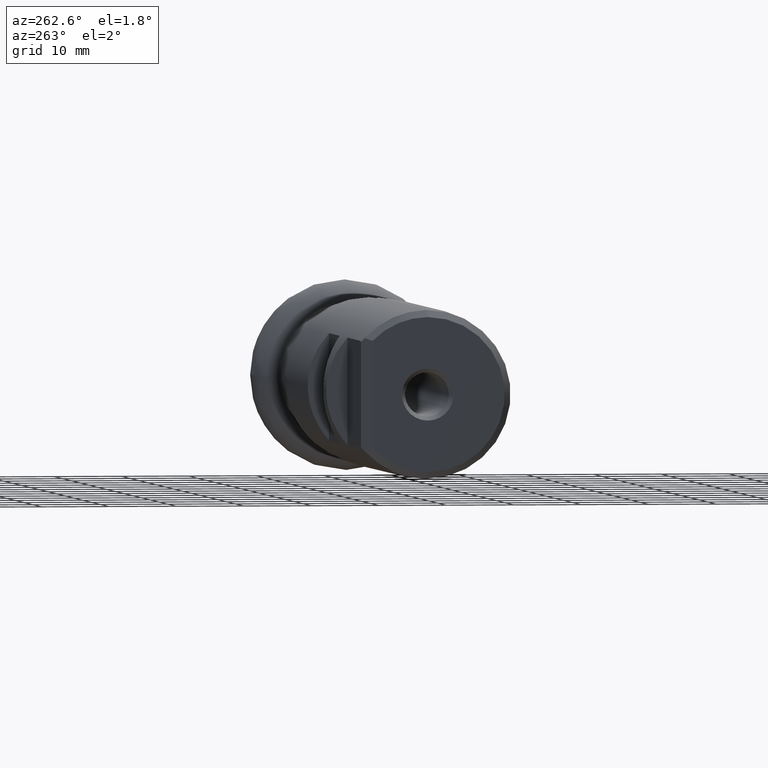
[diagram: clean part render]
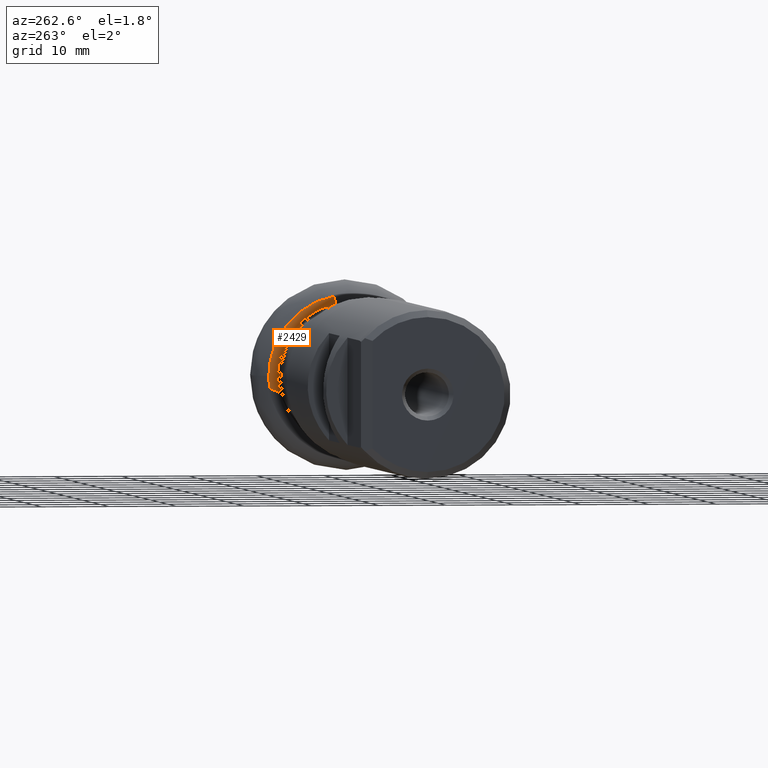
[diagram: same view with one face highlighted and labeled with its STEP entity id]
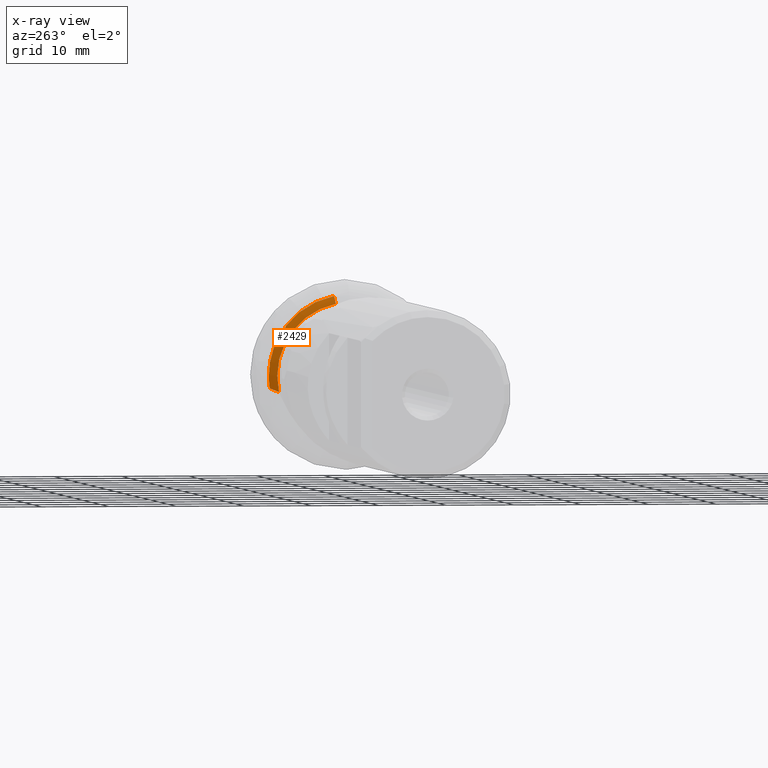
[diagram: x-ray of the same camera — body ghosted, the highlighted face saturated]
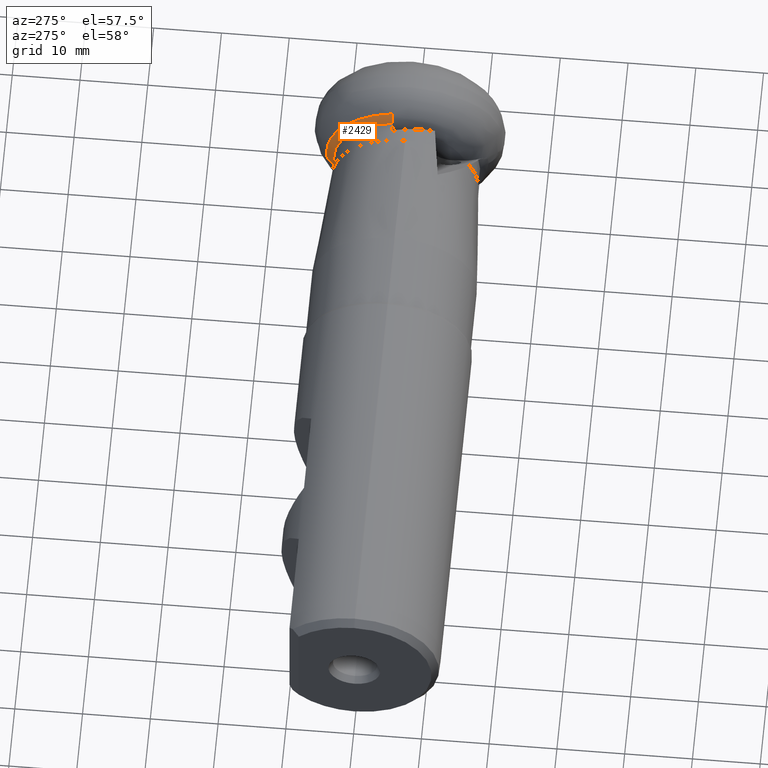
[diagram: same view with one face highlighted and labeled with its STEP entity id]
A machine part, auxiliary view. The second image highlights one B-rep face of the part: STEP entity #2429.
The next image is the same camera in x-ray: the body ghosted, the highlighted face saturated — about 0% of this face is hidden behind the body in this view.
A second angle (auxiliary view) of the same face is appended — the face is thin or edge-on in the first view.
In plain terms, the highlighted toroidal blend (fillet) surface has major radius 7.7545 mm and minor (blend) radius 5.7 mm.
Its self-contained STEP definition (entity closure, byte-faithful):
#2 = VERTEX_POINT ( 'NONE', #2540 ) ;
#21 = VERTEX_POINT ( 'NONE', #1885 ) ;
#33 = DIRECTION ( 'NONE',  ( 1.000000000000000000, -0.0000000000000000000, -0.0000000000000000000 ) ) ;
#38 = CARTESIAN_POINT ( 'NONE',  ( -5.281799981853957600, 0.0000000000000000000, 0.0000000000000000000 ) ) ;
#83 = CARTESIAN_POINT ( 'NONE',  ( -9.348035292207161000, 11.59688001475204700, -1.934769521911337900 ) ) ;
#139 = AXIS2_PLACEMENT_3D ( 'NONE', #3324, #33, #2984 ) ;
#224 = CIRCLE ( 'NONE', #139, 10.79999999999999700 ) ;
#250 = CARTESIAN_POINT ( 'NONE',  ( -9.167822602587575500, 0.0000000000000000000, 0.0000000000000000000 ) ) ;
#300 = VERTEX_POINT ( 'NONE', #499 ) ;
#439 = CARTESIAN_POINT ( 'NONE',  ( -9.969891168297664300, 10.76539093260824300, -2.291594140330984100 ) ) ;
#499 = CARTESIAN_POINT ( 'NONE',  ( -10.10000000000000100, 2.144658030566839500, 10.58491577349225400 ) ) ;
#515 = CARTESIAN_POINT ( 'NONE',  ( -9.290605569471004800, 9.696494237190673700, 6.737730578655929400 ) ) ;
#617 = EDGE_CURVE ( 'NONE', #21, #3234, #2149, .T. ) ;
#709 = FACE_OUTER_BOUND ( 'NONE', #911, .T. ) ;
#812 = VERTEX_POINT ( 'NONE', #992 ) ;
#842 = CARTESIAN_POINT ( 'NONE',  ( -9.167822602587532900, 10.35186947406689800, 5.918848677900390600 ) ) ;
#867 = ORIENTED_EDGE ( 'NONE', *, *, #2796, .F. ) ;
#885 = CARTESIAN_POINT ( 'NONE',  ( -9.167822602580525200, 9.348057227950581800, 7.403228845791177000 ) ) ;
#911 = EDGE_LOOP ( 'NONE', ( #3054, #2623, #4120, #2331, #2126, #867, #2159 ) ) ;
#942 = DIRECTION ( 'NONE',  ( 0.0000000000000000000, 0.0000000000000000000, -1.000000000000000000 ) ) ;
#992 = CARTESIAN_POINT ( 'NONE',  ( -9.167822602587575500, 11.92451136441239100, 0.0000000000000000000 ) ) ;
#1069 = CARTESIAN_POINT ( 'NONE',  ( -9.827612605725072100, 10.98343231446578400, -2.205490078892624600 ) ) ;
#1255 = EDGE_CURVE ( 'NONE', #812, #2, #3178, .T. ) ;
#1297 = AXIS2_PLACEMENT_3D ( 'NONE', #3402, #4019, #3035 ) ;
#1307 = B_SPLINE_CURVE_WITH_KNOTS ( 'NONE', 3,
 ( #1364, #83, #3025, #1069, #439, #1413 ),
 .UNSPECIFIED., .F., .F.,
 ( 4, 2, 4 ),
 ( 0.003093741061222243500, 0.003907858679738716000, 0.004721976298255188900 ),
 .UNSPECIFIED. ) ;
#1364 = CARTESIAN_POINT ( 'NONE',  ( -9.167822602587557800, 11.78109728418471000, -1.843832438313314400 ) ) ;
#1376 = VERTEX_POINT ( 'NONE', #3048 ) ;
#1396 = DIRECTION ( 'NONE',  ( 1.000000000000000000, -0.0000000000000000000, -0.0000000000000000000 ) ) ;
#1413 = CARTESIAN_POINT ( 'NONE',  ( -10.10000000000000100, 10.53639246463708900, -2.371588883246563000 ) ) ;
#1482 = AXIS2_PLACEMENT_3D ( 'NONE', #38, #3012, #3643 ) ;
#1501 = CARTESIAN_POINT ( 'NONE',  ( -9.285270187011459300, 9.954721822645941700, 6.365183970188853700 ) ) ;
#1502 = EDGE_CURVE ( 'NONE', #1376, #300, #224, .T. ) ;
#1535 = EDGE_CURVE ( 'NONE', #4148, #1376, #1307, .T. ) ;
#1731 = CIRCLE ( 'NONE', #3405, 11.92451136441239100 ) ;
#1804 = AXIS2_PLACEMENT_3D ( 'NONE', #3038, #1396, #2374 ) ;
#1885 = CARTESIAN_POINT ( 'NONE',  ( -9.167822602580525200, 9.348057227950581800, 7.403228845791177000 ) ) ;
#1933 = DIRECTION ( 'NONE',  ( 1.000000000000000000, -0.0000000000000000000, -0.0000000000000000000 ) ) ;
#2126 = ORIENTED_EDGE ( 'NONE', *, *, #617, .F. ) ;
#2149 = CIRCLE ( 'NONE', #1804, 11.92451136441239100 ) ;
#2159 = ORIENTED_EDGE ( 'NONE', *, *, #1255, .F. ) ;
#2243 = CARTESIAN_POINT ( 'NONE',  ( -9.836995036317183900, 2.181620967693698600, 11.00197705087912500 ) ) ;
#2280 = CARTESIAN_POINT ( 'NONE',  ( -9.167822602569444300, 2.275667020092440900, 11.70535394142728300 ) ) ;
#2331 = ORIENTED_EDGE ( 'NONE', *, *, #4195, .T. ) ;
#2374 = DIRECTION ( 'NONE',  ( 0.0000000000000000000, 0.0000000000000000000, -1.000000000000000000 ) ) ;
#2429 = ADVANCED_FACE ( 'NONE', ( #709 ), #3120, .T. ) ;
#2477 = CARTESIAN_POINT ( 'NONE',  ( -9.243327276122236900, 10.14809804669126700, 6.133480199378530200 ) ) ;
#2540 = CARTESIAN_POINT ( 'NONE',  ( -9.167822602587532900, 10.35186947406689800, 5.918848677900390600 ) ) ;
#2561 = CARTESIAN_POINT ( 'NONE',  ( -9.167822602587557800, 11.78109728418471000, -1.843832438313314400 ) ) ;
#2623 = ORIENTED_EDGE ( 'NONE', *, *, #1535, .T. ) ;
#2795 = CARTESIAN_POINT ( 'NONE',  ( -9.242958673166192800, 9.467595415866725300, 7.133582802292738600 ) ) ;
#2796 = EDGE_CURVE ( 'NONE', #2, #21, #4238, .T. ) ;
#2809 = CARTESIAN_POINT ( 'NONE',  ( -9.211960640012998500, 9.402887267244119900, 7.267742403395010000 ) ) ;
#2984 = DIRECTION ( 'NONE',  ( 0.0000000000000000000, 0.0000000000000000000, -1.000000000000000000 ) ) ;
#3012 = DIRECTION ( 'NONE',  ( 1.000000000000000000, -0.0000000000000000000, -0.0000000000000000000 ) ) ;
#3025 = CARTESIAN_POINT ( 'NONE',  ( -9.517023481981963700, 11.39893252344907100, -2.027237917574786300 ) ) ;
#3035 = DIRECTION ( 'NONE',  ( 0.0000000000000000000, 0.0000000000000000000, -1.000000000000000000 ) ) ;
#3038 = CARTESIAN_POINT ( 'NONE',  ( -9.167822602587575500, 0.0000000000000000000, 0.0000000000000000000 ) ) ;
#3048 = CARTESIAN_POINT ( 'NONE',  ( -10.10000000000000100, 10.53639246463708900, -2.371588883246563000 ) ) ;
#3054 = ORIENTED_EDGE ( 'NONE', *, *, #4081, .F. ) ;
#3120 = TOROIDAL_SURFACE ( 'NONE', #1482, 7.754519974595546600, 5.700000000000002000 ) ;
#3178 = CIRCLE ( 'NONE', #1297, 11.92451136441239100 ) ;
#3234 = VERTEX_POINT ( 'NONE', #3577 ) ;
#3241 = CARTESIAN_POINT ( 'NONE',  ( -10.10000000000000100, 2.144658030566839500, 10.58491577349225400 ) ) ;
#3324 = CARTESIAN_POINT ( 'NONE',  ( -10.10000000000000100, 0.0000000000000000000, 0.0000000000000000000 ) ) ;
#3402 = CARTESIAN_POINT ( 'NONE',  ( -9.167822602587575500, 0.0000000000000000000, 0.0000000000000000000 ) ) ;
#3405 = AXIS2_PLACEMENT_3D ( 'NONE', #250, #1933, #942 ) ;
#3421 = B_SPLINE_CURVE_WITH_KNOTS ( 'NONE', 3,
 ( #3241, #2243, #4258, #2280 ),
 .UNSPECIFIED., .F., .F.,
 ( 4, 4 ),
 ( 3.707107734488024900E-007, 0.001462783454609070100 ),
 .UNSPECIFIED. ) ;
#3438 = CARTESIAN_POINT ( 'NONE',  ( -9.282488766168130600, 9.614691550743845700, 6.867902113777878600 ) ) ;
#3577 = CARTESIAN_POINT ( 'NONE',  ( -9.167822602569444300, 2.275667020092440900, 11.70535394142728300 ) ) ;
#3643 = DIRECTION ( 'NONE',  ( 0.0000000000000000000, 0.0000000000000000000, -1.000000000000000000 ) ) ;
#4019 = DIRECTION ( 'NONE',  ( 1.000000000000000000, -0.0000000000000000000, -0.0000000000000000000 ) ) ;
#4081 = EDGE_CURVE ( 'NONE', #4148, #812, #1731, .T. ) ;
#4120 = ORIENTED_EDGE ( 'NONE', *, *, #1502, .T. ) ;
#4148 = VERTEX_POINT ( 'NONE', #2561 ) ;
#4195 = EDGE_CURVE ( 'NONE', #300, #3234, #3421, .T. ) ;
#4238 = B_SPLINE_CURVE_WITH_KNOTS ( 'NONE', 3,
 ( #842, #2477, #1501, #515, #3438, #2795, #2809, #885 ),
 .UNSPECIFIED., .F., .F.,
 ( 4, 2, 2, 4 ),
 ( 0.003792856653064435300, 0.004704156605564979400, 0.005159806581815251600, 0.005615456558065523100 ),
 .UNSPECIFIED. ) ;
#4258 = CARTESIAN_POINT ( 'NONE',  ( -9.525942370383075900, 2.225336569000484500, 11.37515792337429100 ) ) ;